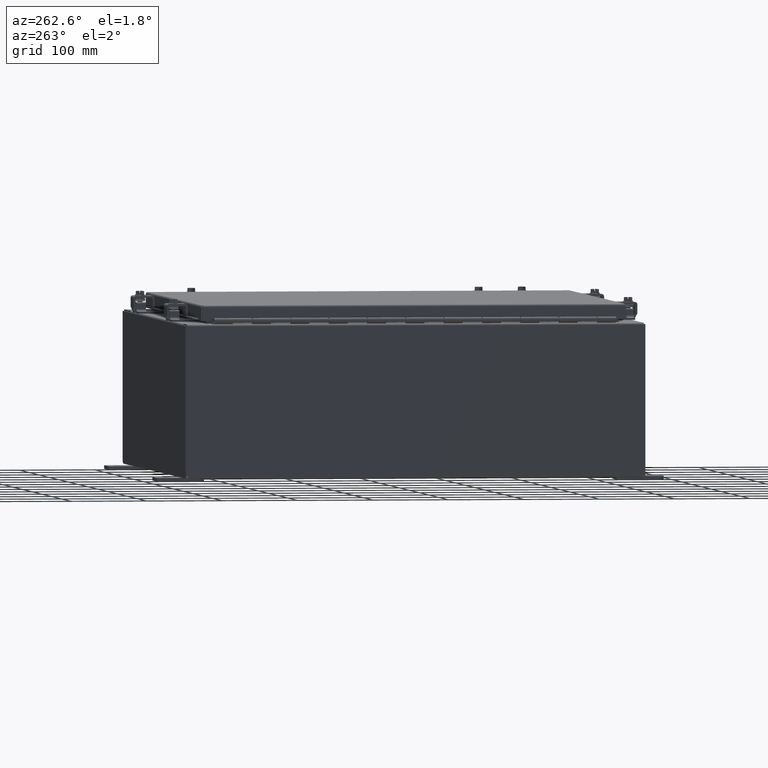
[diagram: clean part render]
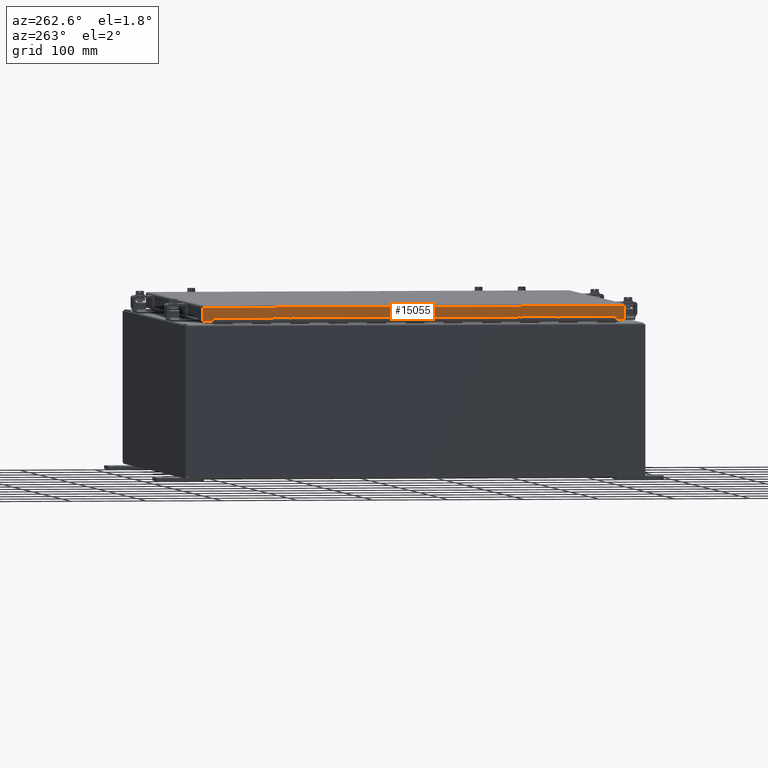
[diagram: same view with one face highlighted and labeled with its STEP entity id]
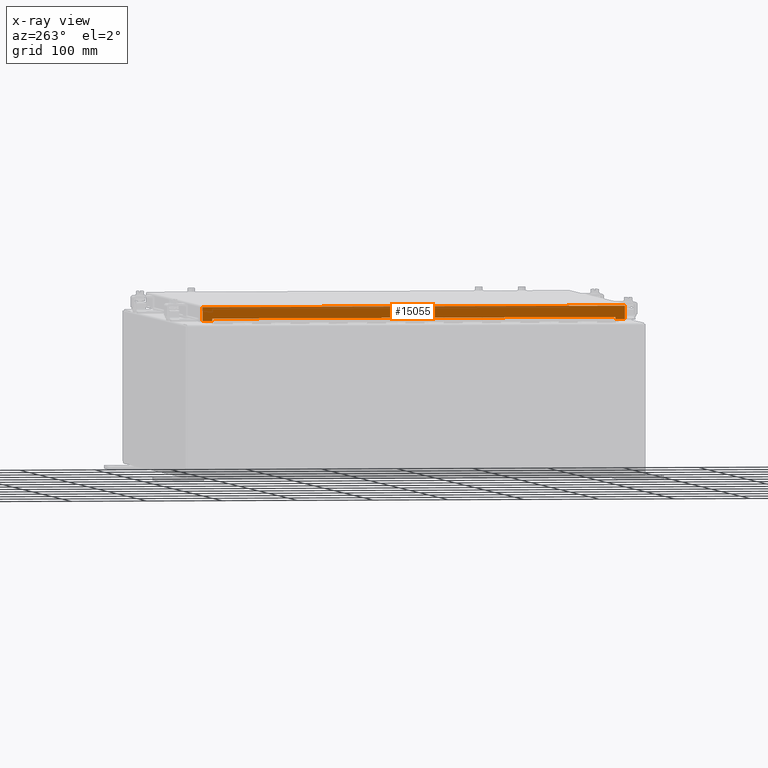
[diagram: x-ray of the same camera — body ghosted, the highlighted face saturated]
A machine part, auxiliary view. The second image highlights one B-rep face of the part: STEP entity #15055.
The next image is the same camera in x-ray: the body ghosted, the highlighted face saturated — about 0% of this face is hidden behind the body in this view.
In plain terms, the highlighted planar face has unit normal (-1, -0, 0).
Its self-contained STEP definition (entity closure, byte-faithful):
#894=PLANE('',#16250);
#1599=FACE_OUTER_BOUND('',#2506,.T.);
#2506=EDGE_LOOP('',(#12553,#12554,#12555,#12556,#12557,#12558,#12559,#12560));
#3867=LINE('',#24348,#5256);
#3871=LINE('',#24357,#5260);
#3874=LINE('',#24361,#5263);
#3875=LINE('',#24364,#5264);
#3880=LINE('',#24373,#5269);
#3895=LINE('',#24544,#5284);
#3897=LINE('',#24562,#5286);
#3901=LINE('',#24622,#5290);
#5256=VECTOR('',#19660,0.125000000000001);
#5260=VECTOR('',#19666,0.125000000000001);
#5263=VECTOR('',#19671,21.03125);
#5264=VECTOR('',#19674,0.50341789321881);
#5269=VECTOR('',#19681,0.50341789321881);
#5284=VECTOR('',#19716,22.0380857864376);
#5286=VECTOR('',#19720,0.70725);
#5290=VECTOR('',#19726,0.70725);
#7121=VERTEX_POINT('',#24345);
#7122=VERTEX_POINT('',#24347);
#7125=VERTEX_POINT('',#24354);
#7126=VERTEX_POINT('',#24356);
#7127=VERTEX_POINT('',#24363);
#7130=VERTEX_POINT('',#24371);
#7139=VERTEX_POINT('',#24542);
#7140=VERTEX_POINT('',#24543);
#8970=EDGE_CURVE('',#7122,#7121,#3867,.T.);
#8974=EDGE_CURVE('',#7126,#7125,#3871,.T.);
#8977=EDGE_CURVE('',#7121,#7126,#3874,.T.);
#8978=EDGE_CURVE('',#7122,#7127,#3875,.T.);
#8983=EDGE_CURVE('',#7130,#7125,#3880,.T.);
#9006=EDGE_CURVE('',#7139,#7140,#3895,.T.);
#9010=EDGE_CURVE('',#7127,#7140,#3897,.T.);
#9016=EDGE_CURVE('',#7139,#7130,#3901,.T.);
#12553=ORIENTED_EDGE('',*,*,#8974,.T.);
#12554=ORIENTED_EDGE('',*,*,#8983,.F.);
#12555=ORIENTED_EDGE('',*,*,#9016,.F.);
#12556=ORIENTED_EDGE('',*,*,#9006,.T.);
#12557=ORIENTED_EDGE('',*,*,#9010,.F.);
#12558=ORIENTED_EDGE('',*,*,#8978,.F.);
#12559=ORIENTED_EDGE('',*,*,#8970,.T.);
#12560=ORIENTED_EDGE('',*,*,#8977,.T.);
#15055=ADVANCED_FACE('',(#1599),#894,.T.);
#16250=AXIS2_PLACEMENT_3D('',#24623,#19727,#19728);
#19660=DIRECTION('',(1.61115351712991E-15,-2.23795466847218E-14,1.));
#19666=DIRECTION('',(-1.61115351712986E-15,-3.07712878800097E-14,-1.));
#19671=DIRECTION('',(8.3530252252678E-16,-1.,1.86800453146907E-16));
#19674=DIRECTION('',(-8.35184124359849E-16,1.,7.23490605752872E-19));
#19681=DIRECTION('',(-8.35184124359849E-16,1.,7.23490605752872E-19));
#19716=DIRECTION('',(-8.3530252252678E-16,1.,4.74281172322663E-30));
#19720=DIRECTION('',(1.62720756498989E-15,-3.36491679420233E-30,1.));
#19726=DIRECTION('',(-1.62720756498989E-15,3.36491679420233E-30,-1.));
#19727=DIRECTION('center_axis',(-1.,-5.29022424573013E-16,-4.85833176675823E-14));
#19728=DIRECTION('ref_axis',(-4.85833176675825E-14,0.,1.));
#24345=CARTESIAN_POINT('',(-1.34079099529042E-14,21.609375,-0.613500000000002));
#24347=CARTESIAN_POINT('',(-1.3604603008448E-14,21.609375,-0.738500000000003));
#24348=CARTESIAN_POINT('',(-1.32002895053857E-14,21.609375,-0.477841546809591));
#24354=CARTESIAN_POINT('',(3.9447885028512E-15,0.578124999999997,-0.738499999999999));
#24356=CARTESIAN_POINT('',(4.14148155839502E-15,0.578125000000003,-0.613499999999998));
#24357=CARTESIAN_POINT('',(4.28353765406556E-15,0.578125000000006,-0.540341546809546));
#24361=CARTESIAN_POINT('',(-2.29475231467798E-16,5.8359375,-0.613499999999999));
#24363=CARTESIAN_POINT('',(-1.40416986874343E-14,22.1127928932188,-0.7385));
#24364=CARTESIAN_POINT('',(4.37095678986282E-15,0.0747071067811871,-0.7385));
#24371=CARTESIAN_POINT('',(4.37095678986282E-15,0.0747071067811871,-0.7385));
#24373=CARTESIAN_POINT('',(4.37095678986282E-15,0.0747071067811871,-0.7385));
#24542=CARTESIAN_POINT('',(5.51833294720181E-15,0.074707106781187,-0.0312499999999995));
#24543=CARTESIAN_POINT('',(-1.29161773140446E-14,22.1127928932188,-0.0312499999999995));
#24544=CARTESIAN_POINT('',(-3.69345848743408E-15,11.09375,-0.0312499999999998));
#24562=CARTESIAN_POINT('',(-1.28943225300953E-14,22.1127928932188,-0.0312499999999995));
#24622=CARTESIAN_POINT('',(5.51833294720181E-15,0.074707106781187,-0.0312499999999995));
#24623=CARTESIAN_POINT('Origin',(-5.44621216016907E-13,11.09375,11.1216588422308));